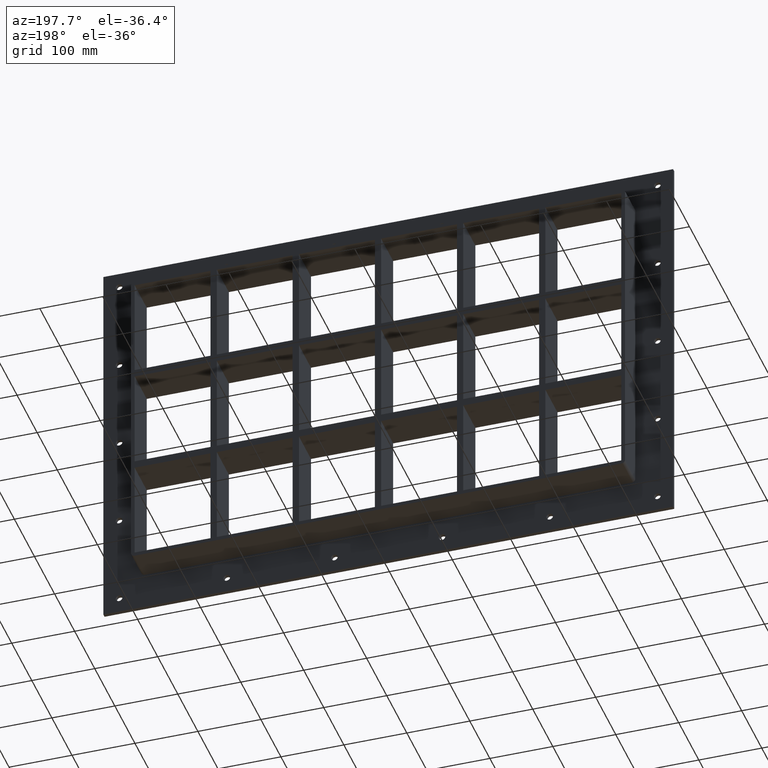
[diagram: clean part render]
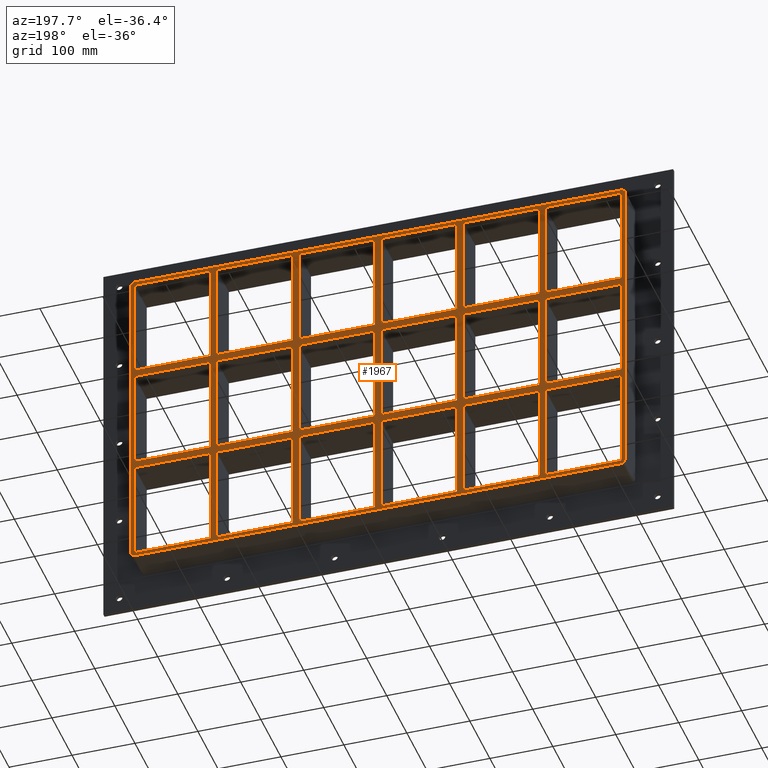
[diagram: same view with one face highlighted and labeled with its STEP entity id]
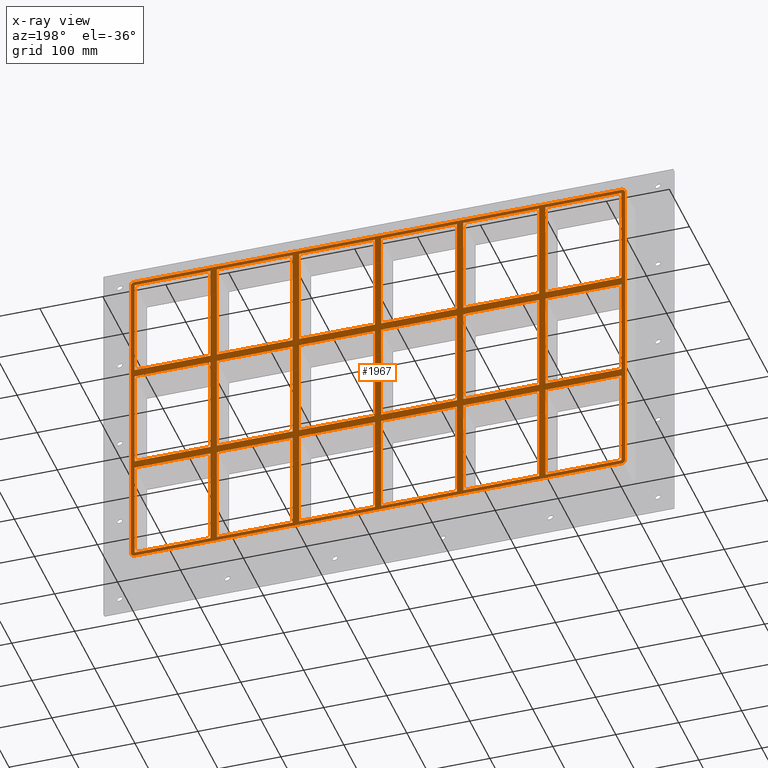
[diagram: x-ray of the same camera — body ghosted, the highlighted face saturated]
A machine part, auxiliary view. The second image highlights one B-rep face of the part: STEP entity #1967.
The next image is the same camera in x-ray: the body ghosted, the highlighted face saturated — about 0% of this face is hidden behind the body in this view.
In plain terms, the highlighted planar face has unit normal (0, 1, 0).
Its self-contained STEP definition (entity closure, byte-faithful):
#579=CARTESIAN_POINT('',(-266.00000000000216,57.0,79.74999999998964));
#580=VERTEX_POINT('',#579);
#595=CARTESIAN_POINT('',(-386.50000000000045,57.0,79.749999999989683));
#596=VERTEX_POINT('',#595);
#603=CARTESIAN_POINT('',(-266.00000000000227,57.0,79.749999999989697));
#604=DIRECTION('',(-1.0,0.0,0.0));
#605=VECTOR('',#604,120.49999999999818);
#606=LINE('',#603,#605);
#607=EDGE_CURVE('',#580,#596,#606,.T.);
#619=CARTESIAN_POINT('',(-135.50000000000216,57.0,79.74999999998974));
#620=VERTEX_POINT('',#619);
#635=CARTESIAN_POINT('',(-256.00000000000364,57.0,79.749999999989711));
#636=VERTEX_POINT('',#635);
#643=CARTESIAN_POINT('',(-135.50000000000216,57.0,79.74999999998974));
#644=DIRECTION('',(-1.0,0.0,0.0));
#645=VECTOR('',#644,120.50000000000148);
#646=LINE('',#643,#645);
#647=EDGE_CURVE('',#620,#636,#646,.T.);
#659=CARTESIAN_POINT('',(-5.000000000002132,57.0,79.749999999989782));
#660=VERTEX_POINT('',#659);
#675=CARTESIAN_POINT('',(-125.50000000000367,57.0,79.74999999998974));
#676=VERTEX_POINT('',#675);
#683=CARTESIAN_POINT('',(-5.00000000000216,57.0,79.749999999989768));
#684=DIRECTION('',(-1.0,0.0,0.0));
#685=VECTOR('',#684,120.50000000000148);
#686=LINE('',#683,#685);
#687=EDGE_CURVE('',#660,#676,#686,.T.);
#699=CARTESIAN_POINT('',(125.49999999999791,57.0,79.749999999989825));
#700=VERTEX_POINT('',#699);
#715=CARTESIAN_POINT('',(4.999999999996376,57.0,79.749999999989782));
#716=VERTEX_POINT('',#715);
#723=CARTESIAN_POINT('',(125.4999999999979,57.0,79.749999999989811));
#724=DIRECTION('',(-1.0,0.0,0.0));
#725=VECTOR('',#724,120.50000000000153);
#726=LINE('',#723,#725);
#727=EDGE_CURVE('',#700,#716,#726,.T.);
#737=CARTESIAN_POINT('',(265.99999999999642,57.0,79.749999999989853));
#738=VERTEX_POINT('',#737);
#747=CARTESIAN_POINT('',(386.49999999999636,57.0,79.749999999989882));
#748=VERTEX_POINT('',#747);
#749=CARTESIAN_POINT('',(386.49999999999636,57.0,79.749999999989882));
#750=DIRECTION('',(-1.0,0.0,0.0));
#751=VECTOR('',#750,120.49999999999994);
#752=LINE('',#749,#751);
#753=EDGE_CURVE('',#748,#738,#752,.T.);
#779=CARTESIAN_POINT('',(255.99999999999793,57.0,79.749999999989853));
#780=VERTEX_POINT('',#779);
#795=CARTESIAN_POINT('',(135.49999999999642,57.0,79.749999999989825));
#796=VERTEX_POINT('',#795);
#803=CARTESIAN_POINT('',(255.99999999999793,57.0,79.749999999989839));
#804=DIRECTION('',(-1.0,0.0,0.0));
#805=VECTOR('',#804,120.50000000000151);
#806=LINE('',#803,#805);
#807=EDGE_CURVE('',#780,#796,#806,.T.);
#817=CARTESIAN_POINT('',(-266.00000000000216,57.0,91.750000000000114));
#818=VERTEX_POINT('',#817);
#827=CARTESIAN_POINT('',(-386.50000000000045,57.0,91.750000000000085));
#828=VERTEX_POINT('',#827);
#829=CARTESIAN_POINT('',(-386.50000000000045,57.0,91.750000000000085));
#830=DIRECTION('',(1.0,0.0,0.0));
#831=VECTOR('',#830,120.49999999999835);
#832=LINE('',#829,#831);
#833=EDGE_CURVE('',#828,#818,#832,.T.);
#859=CARTESIAN_POINT('',(265.99999999999636,57.0,91.750000000000085));
#860=VERTEX_POINT('',#859);
#875=CARTESIAN_POINT('',(386.50000000000023,57.0,91.750000000000085));
#876=VERTEX_POINT('',#875);
#883=CARTESIAN_POINT('',(265.99999999999636,57.0,91.750000000000085));
#884=DIRECTION('',(1.0,0.0,0.0));
#885=VECTOR('',#884,120.50000000000387);
#886=LINE('',#883,#885);
#887=EDGE_CURVE('',#860,#876,#886,.T.);
#897=CARTESIAN_POINT('',(-135.50000000000213,57.0,91.750000000000085));
#898=VERTEX_POINT('',#897);
#907=CARTESIAN_POINT('',(-256.00000000000364,57.0,91.750000000000085));
#908=VERTEX_POINT('',#907);
#909=CARTESIAN_POINT('',(-256.00000000000364,57.0,91.750000000000085));
#910=DIRECTION('',(1.0,0.0,0.0));
#911=VECTOR('',#910,120.50000000000153);
#912=LINE('',#909,#911);
#913=EDGE_CURVE('',#908,#898,#912,.T.);
#937=CARTESIAN_POINT('',(-5.000000000002132,57.0,91.750000000000085));
#938=VERTEX_POINT('',#937);
#947=CARTESIAN_POINT('',(-125.50000000000364,57.0,91.750000000000085));
#948=VERTEX_POINT('',#947);
#949=CARTESIAN_POINT('',(-125.50000000000358,57.0,91.750000000000085));
#950=DIRECTION('',(1.0,0.0,0.0));
#951=VECTOR('',#950,120.50000000000148);
#952=LINE('',#949,#951);
#953=EDGE_CURVE('',#948,#938,#952,.T.);
#977=CARTESIAN_POINT('',(125.49999999999791,57.0,91.750000000000085));
#978=VERTEX_POINT('',#977);
#987=CARTESIAN_POINT('',(4.999999999996376,57.0,91.750000000000085));
#988=VERTEX_POINT('',#987);
#989=CARTESIAN_POINT('',(4.999999999996419,57.0,91.750000000000085));
#990=DIRECTION('',(1.0,0.0,0.0));
#991=VECTOR('',#990,120.50000000000153);
#992=LINE('',#989,#991);
#993=EDGE_CURVE('',#988,#978,#992,.T.);
#1017=CARTESIAN_POINT('',(255.99999999999781,57.0,91.750000000000085));
#1018=VERTEX_POINT('',#1017);
#1027=CARTESIAN_POINT('',(135.49999999999642,57.0,91.750000000000085));
#1028=VERTEX_POINT('',#1027);
#1029=CARTESIAN_POINT('',(135.49999999999648,57.0,91.750000000000085));
#1030=DIRECTION('',(1.0,0.0,0.0));
#1031=VECTOR('',#1030,120.50000000000136);
#1032=LINE('',#1029,#1031);
#1033=EDGE_CURVE('',#1028,#1018,#1032,.T.);
#1058=CARTESIAN_POINT('',(-386.50000000000006,57.0,251.25));
#1059=VERTEX_POINT('',#1058);
#1060=CARTESIAN_POINT('',(-386.50000000000011,57.0,251.25));
#1061=DIRECTION('',(0.0,0.0,-1.0));
#1062=VECTOR('',#1061,159.49999999999991);
#1063=LINE('',#1060,#1062);
#1064=EDGE_CURVE('',#1059,#828,#1063,.T.);
#1089=CARTESIAN_POINT('',(386.50000000000023,57.0,-79.749999999999943));
#1090=VERTEX_POINT('',#1089);
#1091=CARTESIAN_POINT('',(386.50000000000006,57.0,-79.749999999999943));
#1092=DIRECTION('',(0.0,0.0,1.0));
#1093=VECTOR('',#1092,159.49999999998983);
#1094=LINE('',#1091,#1093);
#1095=EDGE_CURVE('',#1090,#748,#1094,.T.);
#1128=CARTESIAN_POINT('',(386.50000000000006,57.0,251.25));
#1129=VERTEX_POINT('',#1128);
#1136=CARTESIAN_POINT('',(386.50000000000006,57.0,91.750000000000085));
#1137=DIRECTION('',(0.0,0.0,1.0));
#1138=VECTOR('',#1137,159.49999999999991);
#1139=LINE('',#1136,#1138);
#1140=EDGE_CURVE('',#876,#1129,#1139,.T.);
#1159=CARTESIAN_POINT('',(255.9999999999979,57.0,251.25));
#1160=VERTEX_POINT('',#1159);
#1167=CARTESIAN_POINT('',(255.9999999999979,57.0,91.750000000000114));
#1168=DIRECTION('',(0.0,0.0,1.0));
#1169=VECTOR('',#1168,159.49999999999989);
#1170=LINE('',#1167,#1169);
#1171=EDGE_CURVE('',#1018,#1160,#1170,.T.);
#1182=CARTESIAN_POINT('',(265.99999999999642,57.0,251.25));
#1183=VERTEX_POINT('',#1182);
#1184=CARTESIAN_POINT('',(265.99999999999642,57.0,251.25));
#1185=DIRECTION('',(0.0,0.0,-1.0));
#1186=VECTOR('',#1185,159.49999999999991);
#1187=LINE('',#1184,#1186);
#1188=EDGE_CURVE('',#1183,#860,#1187,.T.);
#1221=CARTESIAN_POINT('',(125.49999999999787,57.0,251.25));
#1222=VERTEX_POINT('',#1221);
#1229=CARTESIAN_POINT('',(125.49999999999791,57.0,91.750000000000114));
#1230=DIRECTION('',(0.0,0.0,1.0));
#1231=VECTOR('',#1230,159.49999999999989);
#1232=LINE('',#1229,#1231);
#1233=EDGE_CURVE('',#978,#1222,#1232,.T.);
#1244=CARTESIAN_POINT('',(135.49999999999642,57.0,251.25));
#1245=VERTEX_POINT('',#1244);
#1246=CARTESIAN_POINT('',(135.49999999999642,57.0,251.25));
#1247=DIRECTION('',(0.0,0.0,-1.0));
#1248=VECTOR('',#1247,159.49999999999991);
#1249=LINE('',#1246,#1248);
#1250=EDGE_CURVE('',#1245,#1028,#1249,.T.);
#1283=CARTESIAN_POINT('',(-5.000000000002167,57.0,251.25));
#1284=VERTEX_POINT('',#1283);
#1291=CARTESIAN_POINT('',(-5.000000000002133,57.0,91.750000000000114));
#1292=DIRECTION('',(0.0,0.0,1.0));
#1293=VECTOR('',#1292,159.49999999999989);
#1294=LINE('',#1291,#1293);
#1295=EDGE_CURVE('',#938,#1284,#1294,.T.);
#1306=CARTESIAN_POINT('',(4.999999999996376,57.0,251.25));
#1307=VERTEX_POINT('',#1306);
#1308=CARTESIAN_POINT('',(4.999999999996376,57.0,251.25));
#1309=DIRECTION('',(0.0,0.0,-1.0));
#1310=VECTOR('',#1309,159.49999999999991);
#1311=LINE('',#1308,#1310);
#1312=EDGE_CURVE('',#1307,#988,#1311,.T.);
#1345=CARTESIAN_POINT('',(-135.50000000000216,57.0,251.25));
#1346=VERTEX_POINT('',#1345);
#1353=CARTESIAN_POINT('',(-135.50000000000216,57.0,91.750000000000114));
#1354=DIRECTION('',(0.0,0.0,1.0));
#1355=VECTOR('',#1354,159.49999999999989);
#1356=LINE('',#1353,#1355);
#1357=EDGE_CURVE('',#898,#1346,#1356,.T.);
#1368=CARTESIAN_POINT('',(-125.50000000000364,57.0,251.25));
#1369=VERTEX_POINT('',#1368);
#1370=CARTESIAN_POINT('',(-125.50000000000364,57.0,251.25));
#1371=DIRECTION('',(0.0,0.0,-1.0));
#1372=VECTOR('',#1371,159.49999999999991);
#1373=LINE('',#1370,#1372);
#1374=EDGE_CURVE('',#1369,#948,#1373,.T.);
#1407=CARTESIAN_POINT('',(-266.00000000000216,57.0,251.25));
#1408=VERTEX_POINT('',#1407);
#1415=CARTESIAN_POINT('',(-266.0000000000021,57.0,91.750000000000114));
#1416=DIRECTION('',(0.0,0.0,1.0));
#1417=VECTOR('',#1416,159.49999999999989);
#1418=LINE('',#1415,#1417);
#1419=EDGE_CURVE('',#818,#1408,#1418,.T.);
#1430=CARTESIAN_POINT('',(-266.0000000000021,57.0,-79.749999999999943));
#1431=VERTEX_POINT('',#1430);
#1432=CARTESIAN_POINT('',(-266.0000000000021,57.0,-79.749999999999943));
#1433=DIRECTION('',(0.0,0.0,1.0));
#1434=VECTOR('',#1433,159.4999999999896);
#1435=LINE('',#1432,#1434);
#1436=EDGE_CURVE('',#1431,#580,#1435,.T.);
#1461=CARTESIAN_POINT('',(-256.00000000000364,57.0,251.25));
#1462=VERTEX_POINT('',#1461);
#1463=CARTESIAN_POINT('',(-256.00000000000364,57.0,251.25));
#1464=DIRECTION('',(0.0,0.0,-1.0));
#1465=VECTOR('',#1464,159.49999999999991);
#1466=LINE('',#1463,#1465);
#1467=EDGE_CURVE('',#1462,#908,#1466,.T.);
#1486=CARTESIAN_POINT('',(0.0,57.0,0.0));
#1487=DIRECTION('',(0.0,1.0,0.0));
#1488=DIRECTION('',(0.0,0.0,1.0));
#1489=AXIS2_PLACEMENT_3D('',#1486,#1487,#1488);
#1490=PLANE('',#1489);
#1491=CARTESIAN_POINT('',(386.50000000000006,57.0,-257.25));
#1492=VERTEX_POINT('',#1491);
#1493=CARTESIAN_POINT('',(392.50000000000006,57.0,-251.25));
#1494=VERTEX_POINT('',#1493);
#1495=CARTESIAN_POINT('',(386.50000000000006,57.0,-251.25));
#1496=DIRECTION('',(0.0,-1.0,0.0));
#1497=DIRECTION('',(0.707106781186543,0.0,-0.707106781186552));
#1498=AXIS2_PLACEMENT_3D('',#1495,#1496,#1497);
#1499=CIRCLE('',#1498,6.000000000000001);
#1500=EDGE_CURVE('',#1492,#1494,#1499,.T.);
#1501=ORIENTED_EDGE('',*,*,#1500,.F.);
#1502=CARTESIAN_POINT('',(-386.5,57.0,-257.25));
#1503=VERTEX_POINT('',#1502);
#1504=CARTESIAN_POINT('',(386.50000000000006,57.0,-257.25));
#1505=DIRECTION('',(-1.0,0.0,0.0));
#1506=VECTOR('',#1505,773.0);
#1507=LINE('',#1504,#1506);
#1508=EDGE_CURVE('',#1492,#1503,#1507,.T.);
#1509=ORIENTED_EDGE('',*,*,#1508,.T.);
#1510=CARTESIAN_POINT('',(-392.50000000000006,57.0,-251.25));
#1511=VERTEX_POINT('',#1510);
#1512=CARTESIAN_POINT('',(-386.50000000000006,57.0,-251.25));
#1513=DIRECTION('',(0.0,-1.0,0.0));
#1514=DIRECTION('',(-0.707106781186543,0.0,-0.707106781186552));
#1515=AXIS2_PLACEMENT_3D('',#1512,#1513,#1514);
#1516=CIRCLE('',#1515,6.000000000000001);
#1517=EDGE_CURVE('',#1511,#1503,#1516,.T.);
#1518=ORIENTED_EDGE('',*,*,#1517,.F.);
#1519=CARTESIAN_POINT('',(-392.50000000000006,57.0,251.25));
#1520=VERTEX_POINT('',#1519);
#1521=CARTESIAN_POINT('',(-392.50000000000006,57.0,-251.25));
#1522=DIRECTION('',(0.0,0.0,1.0));
#1523=VECTOR('',#1522,502.5);
#1524=LINE('',#1521,#1523);
#1525=EDGE_CURVE('',#1511,#1520,#1524,.T.);
#1526=ORIENTED_EDGE('',*,*,#1525,.T.);
#1527=CARTESIAN_POINT('',(-386.50000000000006,57.0,257.25));
#1528=VERTEX_POINT('',#1527);
#1529=CARTESIAN_POINT('',(-386.50000000000006,57.0,251.25));
#1530=DIRECTION('',(0.0,-1.0,0.0));
#1531=DIRECTION('',(-0.707106781186543,0.0,0.707106781186552));
#1532=AXIS2_PLACEMENT_3D('',#1529,#1530,#1531);
#1533=CIRCLE('',#1532,6.000000000000001);
#1534=EDGE_CURVE('',#1528,#1520,#1533,.T.);
#1535=ORIENTED_EDGE('',*,*,#1534,.F.);
#1536=CARTESIAN_POINT('',(386.5,57.0,257.25));
#1537=VERTEX_POINT('',#1536);
#1538=CARTESIAN_POINT('',(-386.50000000000006,57.0,257.25));
#1539=DIRECTION('',(1.0,0.0,0.0));
#1540=VECTOR('',#1539,773.0);
#1541=LINE('',#1538,#1540);
#1542=EDGE_CURVE('',#1528,#1537,#1541,.T.);
#1543=ORIENTED_EDGE('',*,*,#1542,.T.);
#1544=CARTESIAN_POINT('',(392.50000000000006,57.0,251.25));
#1545=VERTEX_POINT('',#1544);
#1546=CARTESIAN_POINT('',(386.50000000000006,57.0,251.25));
#1547=DIRECTION('',(0.0,-1.0,0.0));
#1548=DIRECTION('',(0.707106781186543,0.0,0.707106781186552));
#1549=AXIS2_PLACEMENT_3D('',#1546,#1547,#1548);
#1550=CIRCLE('',#1549,6.000000000000001);
#1551=EDGE_CURVE('',#1545,#1537,#1550,.T.);
#1552=ORIENTED_EDGE('',*,*,#1551,.F.);
#1553=CARTESIAN_POINT('',(392.50000000000006,57.0,251.25));
#1554=DIRECTION('',(0.0,0.0,-1.0));
#1555=VECTOR('',#1554,502.5);
#1556=LINE('',#1553,#1555);
#1557=EDGE_CURVE('',#1545,#1494,#1556,.T.);
#1558=ORIENTED_EDGE('',*,*,#1557,.T.);
#1559=EDGE_LOOP('',(#1501,#1509,#1518,#1526,#1535,#1543,#1552,#1558));
#1560=FACE_OUTER_BOUND('',#1559,.T.);
#1561=CARTESIAN_POINT('',(-386.50000000000045,57.0,-79.749999999999943));
#1562=VERTEX_POINT('',#1561);
#1563=CARTESIAN_POINT('',(-386.50000000000011,57.0,79.749999999989683));
#1564=DIRECTION('',(0.0,0.0,-1.0));
#1565=VECTOR('',#1564,159.49999999998963);
#1566=LINE('',#1563,#1565);
#1567=EDGE_CURVE('',#596,#1562,#1566,.T.);
#1568=ORIENTED_EDGE('',*,*,#1567,.T.);
#1569=CARTESIAN_POINT('',(-386.50000000000045,57.0,-79.749999999999943));
#1570=DIRECTION('',(1.0,0.0,0.0));
#1571=VECTOR('',#1570,120.49999999999841);
#1572=LINE('',#1569,#1571);
#1573=EDGE_CURVE('',#1562,#1431,#1572,.T.);
#1574=ORIENTED_EDGE('',*,*,#1573,.T.);
#1575=ORIENTED_EDGE('',*,*,#1436,.T.);
#1576=ORIENTED_EDGE('',*,*,#607,.T.);
#1577=EDGE_LOOP('',(#1568,#1574,#1575,#1576));
#1578=FACE_BOUND('',#1577,.T.);
#1579=ORIENTED_EDGE('',*,*,#1140,.T.);
#1580=CARTESIAN_POINT('',(386.50000000000006,57.0,251.25));
#1581=DIRECTION('',(-1.0,0.0,0.0));
#1582=VECTOR('',#1581,120.50000000000364);
#1583=LINE('',#1580,#1582);
#1584=EDGE_CURVE('',#1129,#1183,#1583,.T.);
#1585=ORIENTED_EDGE('',*,*,#1584,.T.);
#1586=ORIENTED_EDGE('',*,*,#1188,.T.);
#1587=ORIENTED_EDGE('',*,*,#887,.T.);
#1588=EDGE_LOOP('',(#1579,#1585,#1586,#1587));
#1589=FACE_BOUND('',#1588,.T.);
#1590=ORIENTED_EDGE('',*,*,#1171,.T.);
#1591=CARTESIAN_POINT('',(255.9999999999979,57.0,251.25));
#1592=DIRECTION('',(-1.0,0.0,0.0));
#1593=VECTOR('',#1592,120.50000000000148);
#1594=LINE('',#1591,#1593);
#1595=EDGE_CURVE('',#1160,#1245,#1594,.T.);
#1596=ORIENTED_EDGE('',*,*,#1595,.T.);
#1597=ORIENTED_EDGE('',*,*,#1250,.T.);
#1598=ORIENTED_EDGE('',*,*,#1033,.T.);
#1599=EDGE_LOOP('',(#1590,#1596,#1597,#1598));
#1600=FACE_BOUND('',#1599,.T.);
#1601=ORIENTED_EDGE('',*,*,#1233,.T.);
#1602=CARTESIAN_POINT('',(125.4999999999979,57.0,251.25));
#1603=DIRECTION('',(-1.0,0.0,0.0));
#1604=VECTOR('',#1603,120.50000000000151);
#1605=LINE('',#1602,#1604);
#1606=EDGE_CURVE('',#1222,#1307,#1605,.T.);
#1607=ORIENTED_EDGE('',*,*,#1606,.T.);
#1608=ORIENTED_EDGE('',*,*,#1312,.T.);
#1609=ORIENTED_EDGE('',*,*,#993,.T.);
#1610=EDGE_LOOP('',(#1601,#1607,#1608,#1609));
#1611=FACE_BOUND('',#1610,.T.);
#1612=ORIENTED_EDGE('',*,*,#1295,.T.);
#1613=CARTESIAN_POINT('',(-5.00000000000216,57.0,251.25));
#1614=DIRECTION('',(-1.0,0.0,0.0));
#1615=VECTOR('',#1614,120.50000000000146);
#1616=LINE('',#1613,#1615);
#1617=EDGE_CURVE('',#1284,#1369,#1616,.T.);
#1618=ORIENTED_EDGE('',*,*,#1617,.T.);
#1619=ORIENTED_EDGE('',*,*,#1374,.T.);
#1620=ORIENTED_EDGE('',*,*,#953,.T.);
#1621=EDGE_LOOP('',(#1612,#1618,#1619,#1620));
#1622=FACE_BOUND('',#1621,.T.);
#1623=ORIENTED_EDGE('',*,*,#1357,.T.);
#1624=CARTESIAN_POINT('',(-135.50000000000216,57.0,251.25));
#1625=DIRECTION('',(-1.0,0.0,0.0));
#1626=VECTOR('',#1625,120.50000000000148);
#1627=LINE('',#1624,#1626);
#1628=EDGE_CURVE('',#1346,#1462,#1627,.T.);
#1629=ORIENTED_EDGE('',*,*,#1628,.T.);
#1630=ORIENTED_EDGE('',*,*,#1467,.T.);
#1631=ORIENTED_EDGE('',*,*,#913,.T.);
#1632=EDGE_LOOP('',(#1623,#1629,#1630,#1631));
#1633=FACE_BOUND('',#1632,.T.);
#1634=ORIENTED_EDGE('',*,*,#753,.T.);
#1635=CARTESIAN_POINT('',(265.99999999999642,57.0,-79.749999999999943));
#1636=VERTEX_POINT('',#1635);
#1637=CARTESIAN_POINT('',(265.99999999999642,57.0,79.749999999989853));
#1638=DIRECTION('',(0.0,0.0,-1.0));
#1639=VECTOR('',#1638,159.4999999999898);
#1640=LINE('',#1637,#1639);
#1641=EDGE_CURVE('',#738,#1636,#1640,.T.);
#1642=ORIENTED_EDGE('',*,*,#1641,.T.);
#1643=CARTESIAN_POINT('',(265.99999999999636,57.0,-79.749999999999943));
#1644=DIRECTION('',(1.0,0.0,0.0));
#1645=VECTOR('',#1644,120.50000000000387);
#1646=LINE('',#1643,#1645);
#1647=EDGE_CURVE('',#1636,#1090,#1646,.T.);
#1648=ORIENTED_EDGE('',*,*,#1647,.T.);
#1649=ORIENTED_EDGE('',*,*,#1095,.T.);
#1650=EDGE_LOOP('',(#1634,#1642,#1648,#1649));
#1651=FACE_BOUND('',#1650,.T.);
#1652=ORIENTED_EDGE('',*,*,#807,.T.);
#1653=CARTESIAN_POINT('',(135.49999999999642,57.0,-79.749999999999943));
#1654=VERTEX_POINT('',#1653);
#1655=CARTESIAN_POINT('',(135.49999999999642,57.0,79.749999999989825));
#1656=DIRECTION('',(0.0,0.0,-1.0));
#1657=VECTOR('',#1656,159.49999999998977);
#1658=LINE('',#1655,#1657);
#1659=EDGE_CURVE('',#796,#1654,#1658,.T.);
#1660=ORIENTED_EDGE('',*,*,#1659,.T.);
#1661=CARTESIAN_POINT('',(255.99999999999795,57.0,-79.749999999999943));
#1662=VERTEX_POINT('',#1661);
#1663=CARTESIAN_POINT('',(135.49999999999648,57.0,-79.749999999999943));
#1664=DIRECTION('',(1.0,0.0,0.0));
#1665=VECTOR('',#1664,120.50000000000148);
#1666=LINE('',#1663,#1665);
#1667=EDGE_CURVE('',#1654,#1662,#1666,.T.);
#1668=ORIENTED_EDGE('',*,*,#1667,.T.);
#1669=CARTESIAN_POINT('',(255.99999999999795,57.0,-79.749999999999943));
#1670=DIRECTION('',(0.0,0.0,1.0));
#1671=VECTOR('',#1670,159.49999999998983);
#1672=LINE('',#1669,#1671);
#1673=EDGE_CURVE('',#1662,#780,#1672,.T.);
#1674=ORIENTED_EDGE('',*,*,#1673,.T.);
#1675=EDGE_LOOP('',(#1652,#1660,#1668,#1674));
#1676=FACE_BOUND('',#1675,.T.);
#1677=ORIENTED_EDGE('',*,*,#727,.T.);
#1678=CARTESIAN_POINT('',(4.999999999996376,57.0,-79.749999999999943));
#1679=VERTEX_POINT('',#1678);
#1680=CARTESIAN_POINT('',(4.999999999996376,57.0,79.749999999989768));
#1681=DIRECTION('',(0.0,0.0,-1.0));
#1682=VECTOR('',#1681,159.49999999998971);
#1683=LINE('',#1680,#1682);
#1684=EDGE_CURVE('',#716,#1679,#1683,.T.);
#1685=ORIENTED_EDGE('',*,*,#1684,.T.);
#1686=CARTESIAN_POINT('',(125.49999999999795,57.0,-79.749999999999943));
#1687=VERTEX_POINT('',#1686);
#1688=CARTESIAN_POINT('',(4.999999999996419,57.0,-79.749999999999943));
#1689=DIRECTION('',(1.0,0.0,0.0));
#1690=VECTOR('',#1689,120.50000000000159);
#1691=LINE('',#1688,#1690);
#1692=EDGE_CURVE('',#1679,#1687,#1691,.T.);
#1693=ORIENTED_EDGE('',*,*,#1692,.T.);
#1694=CARTESIAN_POINT('',(125.49999999999794,57.0,-79.749999999999943));
#1695=DIRECTION('',(0.0,0.0,1.0));
#1696=VECTOR('',#1695,159.49999999998983);
#1697=LINE('',#1694,#1696);
#1698=EDGE_CURVE('',#1687,#700,#1697,.T.);
#1699=ORIENTED_EDGE('',*,*,#1698,.T.);
#1700=EDGE_LOOP('',(#1677,#1685,#1693,#1699));
#1701=FACE_BOUND('',#1700,.T.);
#1702=ORIENTED_EDGE('',*,*,#687,.T.);
#1703=CARTESIAN_POINT('',(-125.50000000000364,57.0,-79.749999999999943));
#1704=VERTEX_POINT('',#1703);
#1705=CARTESIAN_POINT('',(-125.50000000000364,57.0,79.74999999998974));
#1706=DIRECTION('',(0.0,0.0,-1.0));
#1707=VECTOR('',#1706,159.49999999998968);
#1708=LINE('',#1705,#1707);
#1709=EDGE_CURVE('',#676,#1704,#1708,.T.);
#1710=ORIENTED_EDGE('',*,*,#1709,.T.);
#1711=CARTESIAN_POINT('',(-5.000000000002097,57.0,-79.749999999999943));
#1712=VERTEX_POINT('',#1711);
#1713=CARTESIAN_POINT('',(-125.50000000000358,57.0,-79.749999999999943));
#1714=DIRECTION('',(1.0,0.0,0.0));
#1715=VECTOR('',#1714,120.50000000000148);
#1716=LINE('',#1713,#1715);
#1717=EDGE_CURVE('',#1704,#1712,#1716,.T.);
#1718=ORIENTED_EDGE('',*,*,#1717,.T.);
#1719=CARTESIAN_POINT('',(-5.000000000002097,57.0,-79.749999999999943));
#1720=DIRECTION('',(0.0,0.0,1.0));
#1721=VECTOR('',#1720,159.49999999998971);
#1722=LINE('',#1719,#1721);
#1723=EDGE_CURVE('',#1712,#660,#1722,.T.);
#1724=ORIENTED_EDGE('',*,*,#1723,.T.);
#1725=EDGE_LOOP('',(#1702,#1710,#1718,#1724));
#1726=FACE_BOUND('',#1725,.T.);
#1727=ORIENTED_EDGE('',*,*,#647,.T.);
#1728=CARTESIAN_POINT('',(-256.00000000000364,57.0,-79.749999999999943));
#1729=VERTEX_POINT('',#1728);
#1730=CARTESIAN_POINT('',(-256.00000000000364,57.0,79.749999999989711));
#1731=DIRECTION('',(0.0,0.0,-1.0));
#1732=VECTOR('',#1731,159.49999999998965);
#1733=LINE('',#1730,#1732);
#1734=EDGE_CURVE('',#636,#1729,#1733,.T.);
#1735=ORIENTED_EDGE('',*,*,#1734,.T.);
#1736=CARTESIAN_POINT('',(-135.5000000000021,57.0,-79.749999999999943));
#1737=VERTEX_POINT('',#1736);
#1738=CARTESIAN_POINT('',(-256.00000000000364,57.0,-79.749999999999943));
#1739=DIRECTION('',(1.0,0.0,0.0));
#1740=VECTOR('',#1739,120.50000000000156);
#1741=LINE('',#1738,#1740);
#1742=EDGE_CURVE('',#1729,#1737,#1741,.T.);
#1743=ORIENTED_EDGE('',*,*,#1742,.T.);
#1744=CARTESIAN_POINT('',(-135.5000000000021,57.0,-79.749999999999943));
#1745=DIRECTION('',(0.0,0.0,1.0));
#1746=VECTOR('',#1745,159.49999999998965);
#1747=LINE('',#1744,#1746);
#1748=EDGE_CURVE('',#1737,#620,#1747,.T.);
#1749=ORIENTED_EDGE('',*,*,#1748,.T.);
#1750=EDGE_LOOP('',(#1727,#1735,#1743,#1749));
#1751=FACE_BOUND('',#1750,.T.);
#1752=CARTESIAN_POINT('',(-386.50000000000045,57.0,-91.750000000010346));
#1753=VERTEX_POINT('',#1752);
#1754=CARTESIAN_POINT('',(-386.50000000000006,57.0,-251.25));
#1755=VERTEX_POINT('',#1754);
#1756=CARTESIAN_POINT('',(-386.50000000000011,57.0,-91.750000000010346));
#1757=DIRECTION('',(0.0,0.0,-1.0));
#1758=VECTOR('',#1757,159.49999999998965);
#1759=LINE('',#1756,#1758);
#1760=EDGE_CURVE('',#1753,#1755,#1759,.T.);
#1761=ORIENTED_EDGE('',*,*,#1760,.T.);
#1762=CARTESIAN_POINT('',(-266.00000000000205,57.0,-251.25));
#1763=VERTEX_POINT('',#1762);
#1764=CARTESIAN_POINT('',(-386.50000000000011,57.0,-251.25));
#1765=DIRECTION('',(1.0,0.0,0.0));
#1766=VECTOR('',#1765,120.49999999999807);
#1767=LINE('',#1764,#1766);
#1768=EDGE_CURVE('',#1755,#1763,#1767,.T.);
#1769=ORIENTED_EDGE('',*,*,#1768,.T.);
#1770=CARTESIAN_POINT('',(-266.00000000000205,57.0,-91.750000000010317));
#1771=VERTEX_POINT('',#1770);
#1772=CARTESIAN_POINT('',(-266.00000000000205,57.0,-251.25));
#1773=DIRECTION('',(0.0,0.0,1.0));
#1774=VECTOR('',#1773,159.49999999998968);
#1775=LINE('',#1772,#1774);
#1776=EDGE_CURVE('',#1763,#1771,#1775,.T.);
#1777=ORIENTED_EDGE('',*,*,#1776,.T.);
#1778=CARTESIAN_POINT('',(-266.00000000000205,57.0,-91.750000000010317));
#1779=DIRECTION('',(-1.0,0.0,0.0));
#1780=VECTOR('',#1779,120.49999999999841);
#1781=LINE('',#1778,#1780);
#1782=EDGE_CURVE('',#1771,#1753,#1781,.T.);
#1783=ORIENTED_EDGE('',*,*,#1782,.T.);
#1784=EDGE_LOOP('',(#1761,#1769,#1777,#1783));
#1785=FACE_BOUND('',#1784,.T.);
#1786=CARTESIAN_POINT('',(-135.50000000000207,57.0,-251.25));
#1787=VERTEX_POINT('',#1786);
#1788=CARTESIAN_POINT('',(-135.5000000000021,57.0,-91.750000000010274));
#1789=VERTEX_POINT('',#1788);
#1790=CARTESIAN_POINT('',(-135.50000000000207,57.0,-251.25));
#1791=DIRECTION('',(0.0,0.0,1.0));
#1792=VECTOR('',#1791,159.49999999998971);
#1793=LINE('',#1790,#1792);
#1794=EDGE_CURVE('',#1787,#1789,#1793,.T.);
#1795=ORIENTED_EDGE('',*,*,#1794,.T.);
#1796=CARTESIAN_POINT('',(-256.00000000000364,57.0,-91.750000000010317));
#1797=VERTEX_POINT('',#1796);
#1798=CARTESIAN_POINT('',(-135.50000000000205,57.0,-91.750000000010274));
#1799=DIRECTION('',(-1.0,0.0,0.0));
#1800=VECTOR('',#1799,120.50000000000159);
#1801=LINE('',#1798,#1800);
#1802=EDGE_CURVE('',#1789,#1797,#1801,.T.);
#1803=ORIENTED_EDGE('',*,*,#1802,.T.);
#1804=CARTESIAN_POINT('',(-256.00000000000364,57.0,-251.2499999999865));
#1805=VERTEX_POINT('',#1804);
#1806=CARTESIAN_POINT('',(-256.00000000000364,57.0,-91.750000000010346));
#1807=DIRECTION('',(0.0,0.0,-1.0));
#1808=VECTOR('',#1807,159.49999999997613);
#1809=LINE('',#1806,#1808);
#1810=EDGE_CURVE('',#1797,#1805,#1809,.T.);
#1811=ORIENTED_EDGE('',*,*,#1810,.T.);
#1812=CARTESIAN_POINT('',(-256.00000000000364,57.0,-251.25));
#1813=DIRECTION('',(1.0,0.0,0.0));
#1814=VECTOR('',#1813,120.50000000000151);
#1815=LINE('',#1812,#1814);
#1816=EDGE_CURVE('',#1805,#1787,#1815,.T.);
#1817=ORIENTED_EDGE('',*,*,#1816,.T.);
#1818=EDGE_LOOP('',(#1795,#1803,#1811,#1817));
#1819=FACE_BOUND('',#1818,.T.);
#1820=CARTESIAN_POINT('',(-5.000000000002061,57.0,-251.25));
#1821=VERTEX_POINT('',#1820);
#1822=CARTESIAN_POINT('',(-5.000000000002094,57.0,-91.750000000010232));
#1823=VERTEX_POINT('',#1822);
#1824=CARTESIAN_POINT('',(-5.000000000002061,57.0,-251.25));
#1825=DIRECTION('',(0.0,0.0,1.0));
#1826=VECTOR('',#1825,159.49999999998977);
#1827=LINE('',#1824,#1826);
#1828=EDGE_CURVE('',#1821,#1823,#1827,.T.);
#1829=ORIENTED_EDGE('',*,*,#1828,.T.);
#1830=CARTESIAN_POINT('',(-125.50000000000364,57.0,-91.750000000010274));
#1831=VERTEX_POINT('',#1830);
#1832=CARTESIAN_POINT('',(-5.000000000002046,57.0,-91.750000000010246));
#1833=DIRECTION('',(-1.0,0.0,0.0));
#1834=VECTOR('',#1833,120.50000000000159);
#1835=LINE('',#1832,#1834);
#1836=EDGE_CURVE('',#1823,#1831,#1835,.T.);
#1837=ORIENTED_EDGE('',*,*,#1836,.T.);
#1838=CARTESIAN_POINT('',(-125.50000000000364,57.0,-251.2499999999865));
#1839=VERTEX_POINT('',#1838);
#1840=CARTESIAN_POINT('',(-125.50000000000364,57.0,-91.750000000010289));
#1841=DIRECTION('',(0.0,0.0,-1.0));
#1842=VECTOR('',#1841,159.49999999997618);
#1843=LINE('',#1840,#1842);
#1844=EDGE_CURVE('',#1831,#1839,#1843,.T.);
#1845=ORIENTED_EDGE('',*,*,#1844,.T.);
#1846=CARTESIAN_POINT('',(-125.50000000000361,57.0,-251.25));
#1847=DIRECTION('',(1.0,0.0,0.0));
#1848=VECTOR('',#1847,120.50000000000153);
#1849=LINE('',#1846,#1848);
#1850=EDGE_CURVE('',#1839,#1821,#1849,.T.);
#1851=ORIENTED_EDGE('',*,*,#1850,.T.);
#1852=EDGE_LOOP('',(#1829,#1837,#1845,#1851));
#1853=FACE_BOUND('',#1852,.T.);
#1854=CARTESIAN_POINT('',(125.49999999999798,57.0,-251.25));
#1855=VERTEX_POINT('',#1854);
#1856=CARTESIAN_POINT('',(125.49999999999795,57.0,-91.750000000010203));
#1857=VERTEX_POINT('',#1856);
#1858=CARTESIAN_POINT('',(125.49999999999798,57.0,-251.25));
#1859=DIRECTION('',(0.0,0.0,1.0));
#1860=VECTOR('',#1859,159.4999999999898);
#1861=LINE('',#1858,#1860);
#1862=EDGE_CURVE('',#1855,#1857,#1861,.T.);
#1863=ORIENTED_EDGE('',*,*,#1862,.T.);
#1864=CARTESIAN_POINT('',(4.999999999996376,57.0,-91.750000000010203));
#1865=VERTEX_POINT('',#1864);
#1866=CARTESIAN_POINT('',(125.49999999999795,57.0,-91.750000000010203));
#1867=DIRECTION('',(-1.0,0.0,0.0));
#1868=VECTOR('',#1867,120.50000000000159);
#1869=LINE('',#1866,#1868);
#1870=EDGE_CURVE('',#1857,#1865,#1869,.T.);
#1871=ORIENTED_EDGE('',*,*,#1870,.T.);
#1872=CARTESIAN_POINT('',(4.999999999996376,57.0,-251.2499999999865));
#1873=VERTEX_POINT('',#1872);
#1874=CARTESIAN_POINT('',(4.999999999996376,57.0,-91.750000000010232));
#1875=DIRECTION('',(0.0,0.0,-1.0));
#1876=VECTOR('',#1875,159.49999999997624);
#1877=LINE('',#1874,#1876);
#1878=EDGE_CURVE('',#1865,#1873,#1877,.T.);
#1879=ORIENTED_EDGE('',*,*,#1878,.T.);
#1880=CARTESIAN_POINT('',(4.99999999999639,57.0,-251.25));
#1881=DIRECTION('',(1.0,0.0,0.0));
#1882=VECTOR('',#1881,120.50000000000159);
#1883=LINE('',#1880,#1882);
#1884=EDGE_CURVE('',#1873,#1855,#1883,.T.);
#1885=ORIENTED_EDGE('',*,*,#1884,.T.);
#1886=EDGE_LOOP('',(#1863,#1871,#1879,#1885));
#1887=FACE_BOUND('',#1886,.T.);
#1888=CARTESIAN_POINT('',(255.99999999999798,57.0,-251.25));
#1889=VERTEX_POINT('',#1888);
#1890=CARTESIAN_POINT('',(255.99999999999795,57.0,-91.750000000010175));
#1891=VERTEX_POINT('',#1890);
#1892=CARTESIAN_POINT('',(255.99999999999798,57.0,-251.25));
#1893=DIRECTION('',(0.0,0.0,1.0));
#1894=VECTOR('',#1893,159.49999999998983);
#1895=LINE('',#1892,#1894);
#1896=EDGE_CURVE('',#1889,#1891,#1895,.T.);
#1897=ORIENTED_EDGE('',*,*,#1896,.T.);
#1898=CARTESIAN_POINT('',(135.49999999999642,57.0,-91.750000000010203));
#1899=VERTEX_POINT('',#1898);
#1900=CARTESIAN_POINT('',(255.99999999999795,57.0,-91.750000000010175));
#1901=DIRECTION('',(-1.0,0.0,0.0));
#1902=VECTOR('',#1901,120.50000000000153);
#1903=LINE('',#1900,#1902);
#1904=EDGE_CURVE('',#1891,#1899,#1903,.T.);
#1905=ORIENTED_EDGE('',*,*,#1904,.T.);
#1906=CARTESIAN_POINT('',(135.49999999999642,57.0,-251.2499999999865));
#1907=VERTEX_POINT('',#1906);
#1908=CARTESIAN_POINT('',(135.49999999999642,57.0,-91.750000000010232));
#1909=DIRECTION('',(0.0,0.0,-1.0));
#1910=VECTOR('',#1909,159.49999999997624);
#1911=LINE('',#1908,#1910);
#1912=EDGE_CURVE('',#1899,#1907,#1911,.T.);
#1913=ORIENTED_EDGE('',*,*,#1912,.T.);
#1914=CARTESIAN_POINT('',(135.49999999999642,57.0,-251.25));
#1915=DIRECTION('',(1.0,0.0,0.0));
#1916=VECTOR('',#1915,120.50000000000156);
#1917=LINE('',#1914,#1916);
#1918=EDGE_CURVE('',#1907,#1889,#1917,.T.);
#1919=ORIENTED_EDGE('',*,*,#1918,.T.);
#1920=EDGE_LOOP('',(#1897,#1905,#1913,#1919));
#1921=FACE_BOUND('',#1920,.T.);
#1922=ORIENTED_EDGE('',*,*,#833,.T.);
#1923=ORIENTED_EDGE('',*,*,#1419,.T.);
#1924=CARTESIAN_POINT('',(-266.00000000000216,57.0,251.25));
#1925=DIRECTION('',(-1.0,0.0,0.0));
#1926=VECTOR('',#1925,120.4999999999979);
#1927=LINE('',#1924,#1926);
#1928=EDGE_CURVE('',#1408,#1059,#1927,.T.);
#1929=ORIENTED_EDGE('',*,*,#1928,.T.);
#1930=ORIENTED_EDGE('',*,*,#1064,.T.);
#1931=EDGE_LOOP('',(#1922,#1923,#1929,#1930));
#1932=FACE_BOUND('',#1931,.T.);
#1933=CARTESIAN_POINT('',(265.99999999999642,57.0,-251.2499999999865));
#1934=VERTEX_POINT('',#1933);
#1935=CARTESIAN_POINT('',(386.50000000000006,57.0,-251.25));
#1936=VERTEX_POINT('',#1935);
#1937=CARTESIAN_POINT('',(265.99999999999642,57.0,-251.25));
#1938=DIRECTION('',(1.0,0.0,0.0));
#1939=VECTOR('',#1938,120.50000000000364);
#1940=LINE('',#1937,#1939);
#1941=EDGE_CURVE('',#1934,#1936,#1940,.T.);
#1942=ORIENTED_EDGE('',*,*,#1941,.T.);
#1943=CARTESIAN_POINT('',(386.49999999999636,57.0,-91.750000000010132));
#1944=VERTEX_POINT('',#1943);
#1945=CARTESIAN_POINT('',(386.50000000000006,57.0,-251.25));
#1946=DIRECTION('',(0.0,0.0,1.0));
#1947=VECTOR('',#1946,159.49999999998988);
#1948=LINE('',#1945,#1947);
#1949=EDGE_CURVE('',#1936,#1944,#1948,.T.);
#1950=ORIENTED_EDGE('',*,*,#1949,.T.);
#1951=CARTESIAN_POINT('',(265.99999999999642,57.0,-91.750000000010132));
#1952=VERTEX_POINT('',#1951);
#1953=CARTESIAN_POINT('',(386.49999999999636,57.0,-91.750000000010132));
#1954=DIRECTION('',(-1.0,0.0,0.0));
#1955=VECTOR('',#1954,120.49999999999994);
#1956=LINE('',#1953,#1955);
#1957=EDGE_CURVE('',#1944,#1952,#1956,.T.);
#1958=ORIENTED_EDGE('',*,*,#1957,.T.);
#1959=CARTESIAN_POINT('',(265.99999999999642,57.0,-91.750000000010118));
#1960=DIRECTION('',(0.0,0.0,-1.0));
#1961=VECTOR('',#1960,159.49999999997635);
#1962=LINE('',#1959,#1961);
#1963=EDGE_CURVE('',#1952,#1934,#1962,.T.);
#1964=ORIENTED_EDGE('',*,*,#1963,.T.);
#1965=EDGE_LOOP('',(#1942,#1950,#1958,#1964));
#1966=FACE_BOUND('',#1965,.T.);
#1967=ADVANCED_FACE('',(#1560,#1578,#1589,#1600,#1611,#1622,#1633,#1651,#1676,#1701,#1726,#1751,#1785,#1819,#1853,#1887,#1921,#1932,#1966),#1490,.T.);